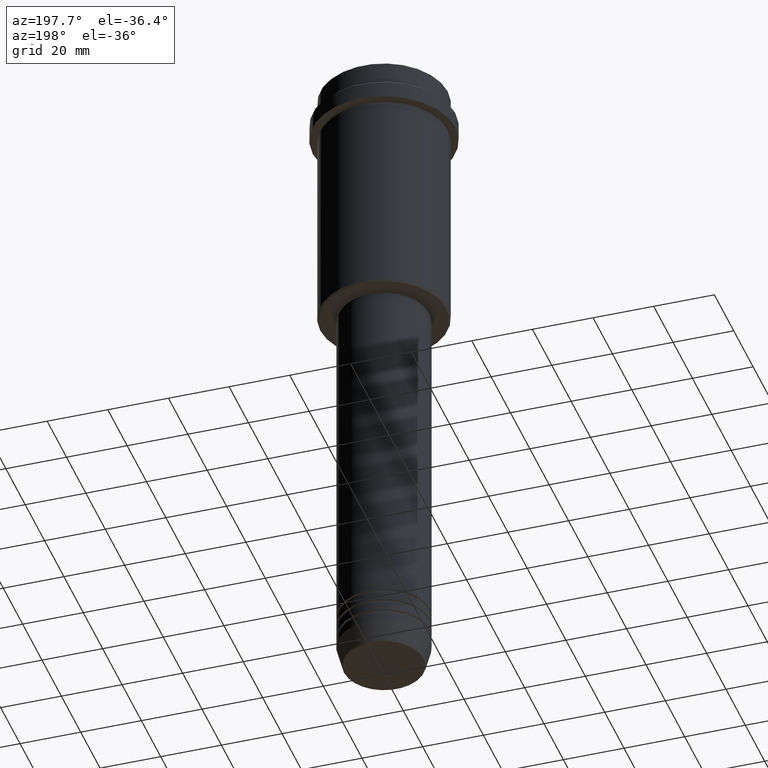
[diagram: clean part render]
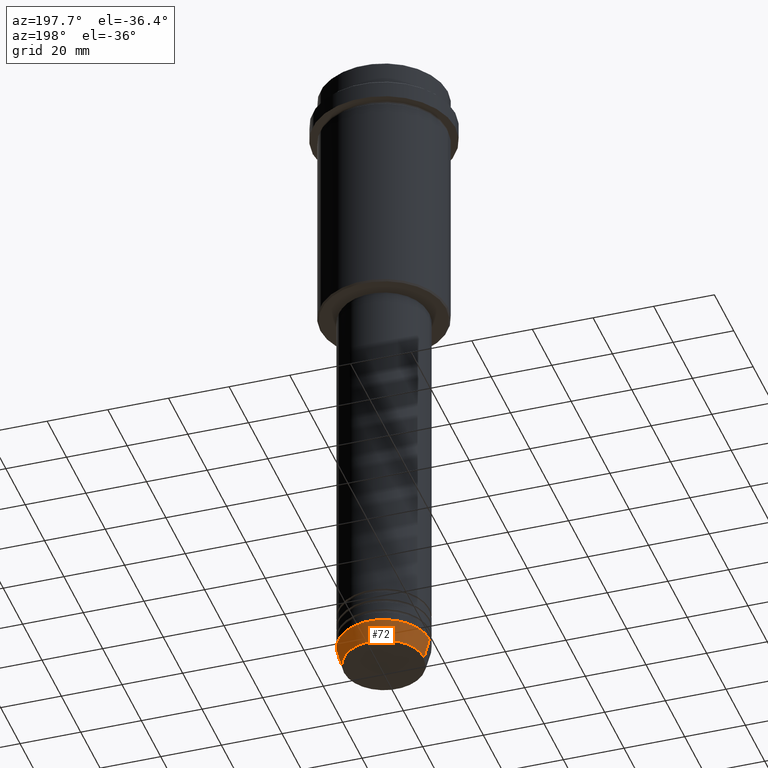
[diagram: same view with one face highlighted and labeled with its STEP entity id]
A machine part, auxiliary view. The second image highlights one B-rep face of the part: STEP entity #72.
In plain terms, the highlighted conical surface has half-angle 15 deg.
Its self-contained STEP definition (entity closure, byte-faithful):
#8 = DIRECTION ( 'NONE',  ( -0.000000000000000000, -0.000000000000000000, 1.000000000000000000 ) ) ;
#41 = DIRECTION ( 'NONE',  ( 0.2588190451025213501, 0.000000000000000000, 0.9659258262890680902 ) ) ;
#72 = ADVANCED_FACE ( 'NONE', ( #810 ), #1187, .T. ) ;
#87 = CARTESIAN_POINT ( 'NONE',  ( 0.000000000000000000, 0.000000000000000000, -219.6294095225512706 ) ) ;
#88 = EDGE_LOOP ( 'NONE', ( #313, #150, #318, #1239 ) ) ;
#150 = ORIENTED_EDGE ( 'NONE', *, *, #657, .T. ) ;
#157 = EDGE_CURVE ( 'NONE', #784, #464, #1021, .T. ) ;
#189 = LINE ( 'NONE', #409, #510 ) ;
#231 = AXIS2_PLACEMENT_3D ( 'NONE', #762, #8, #1305 ) ;
#239 = VERTEX_POINT ( 'NONE', #1382 ) ;
#277 = VECTOR ( 'NONE', #41, 1000.000000000000000 ) ;
#313 = ORIENTED_EDGE ( 'NONE', *, *, #669, .T. ) ;
#318 = ORIENTED_EDGE ( 'NONE', *, *, #679, .F. ) ;
#409 = CARTESIAN_POINT ( 'NONE',  ( -15.00000000000000000, 1.836970198721029589E-15, -213.0000000000000284 ) ) ;
#440 = VERTEX_POINT ( 'NONE', #1212 ) ;
#464 = VERTEX_POINT ( 'NONE', #674 ) ;
#510 = VECTOR ( 'NONE', #1065, 1000.000000000000000 ) ;
#523 = DIRECTION ( 'NONE',  ( -0.000000000000000000, -0.000000000000000000, 1.000000000000000000 ) ) ;
#583 = CARTESIAN_POINT ( 'NONE',  ( 0.000000000000000000, 0.000000000000000000, -213.0000000000000284 ) ) ;
#598 = DIRECTION ( 'NONE',  ( -0.000000000000000000, -0.000000000000000000, 1.000000000000000000 ) ) ;
#657 = EDGE_CURVE ( 'NONE', #440, #239, #189, .T. ) ;
#669 = EDGE_CURVE ( 'NONE', #784, #440, #1376, .T. ) ;
#674 = CARTESIAN_POINT ( 'NONE',  ( 15.00000000000000000, 0.000000000000000000, -213.0000000000000284 ) ) ;
#679 = EDGE_CURVE ( 'NONE', #464, #239, #1119, .T. ) ;
#712 = CARTESIAN_POINT ( 'NONE',  ( 15.00000000000000000, 0.000000000000000000, -213.0000000000000284 ) ) ;
#762 = CARTESIAN_POINT ( 'NONE',  ( 0.000000000000000000, 0.000000000000000000, -213.0000000000000284 ) ) ;
#784 = VERTEX_POINT ( 'NONE', #1012 ) ;
#810 = FACE_OUTER_BOUND ( 'NONE', #88, .T. ) ;
#848 = AXIS2_PLACEMENT_3D ( 'NONE', #87, #523, #991 ) ;
#991 = DIRECTION ( 'NONE',  ( 1.000000000000000000, 0.000000000000000000, 0.000000000000000000 ) ) ;
#1012 = CARTESIAN_POINT ( 'NONE',  ( 13.22365507213719482, 0.000000000000000000, -219.6294095225512706 ) ) ;
#1021 = LINE ( 'NONE', #712, #277 ) ;
#1031 = AXIS2_PLACEMENT_3D ( 'NONE', #583, #598, #1048 ) ;
#1048 = DIRECTION ( 'NONE',  ( 1.000000000000000000, 0.000000000000000000, 0.000000000000000000 ) ) ;
#1065 = DIRECTION ( 'NONE',  ( -0.2588190451025213501, 3.169619151431772337E-17, 0.9659258262890680902 ) ) ;
#1119 = CIRCLE ( 'NONE', #231, 15.00000000000000000 ) ;
#1187 = CONICAL_SURFACE ( 'NONE', #1031, 15.00000000000000000, 0.2617993877991500740 ) ;
#1212 = CARTESIAN_POINT ( 'NONE',  ( -13.22365507213719660, 1.728200442216588780E-15, -219.6294095225512706 ) ) ;
#1239 = ORIENTED_EDGE ( 'NONE', *, *, #157, .F. ) ;
#1305 = DIRECTION ( 'NONE',  ( 1.000000000000000000, 0.000000000000000000, 0.000000000000000000 ) ) ;
#1376 = CIRCLE ( 'NONE', #848, 13.22365507213719482 ) ;
#1382 = CARTESIAN_POINT ( 'NONE',  ( -15.00000000000000000, 1.836970198721029589E-15, -213.0000000000000284 ) ) ;